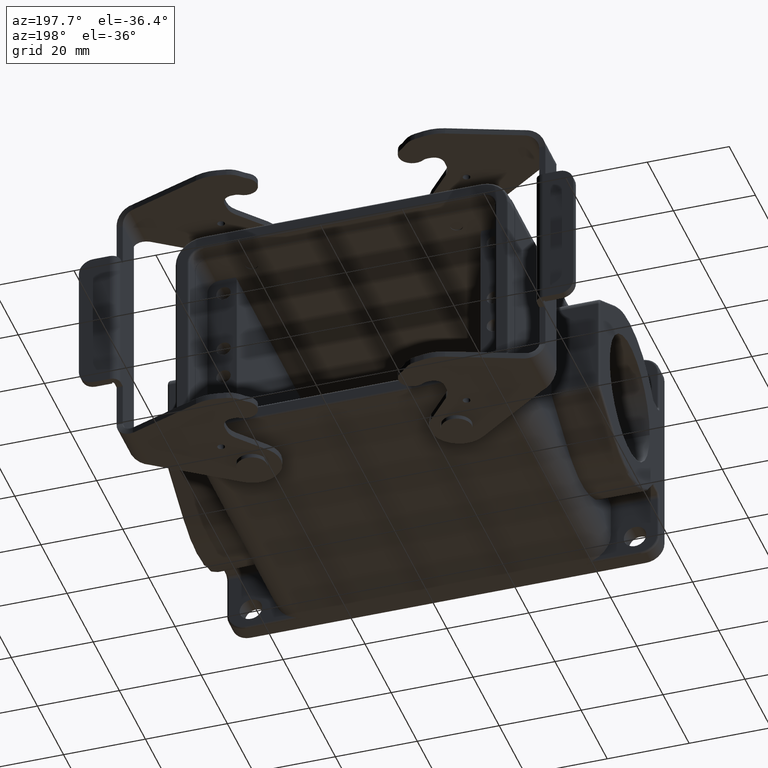
[diagram: clean part render]
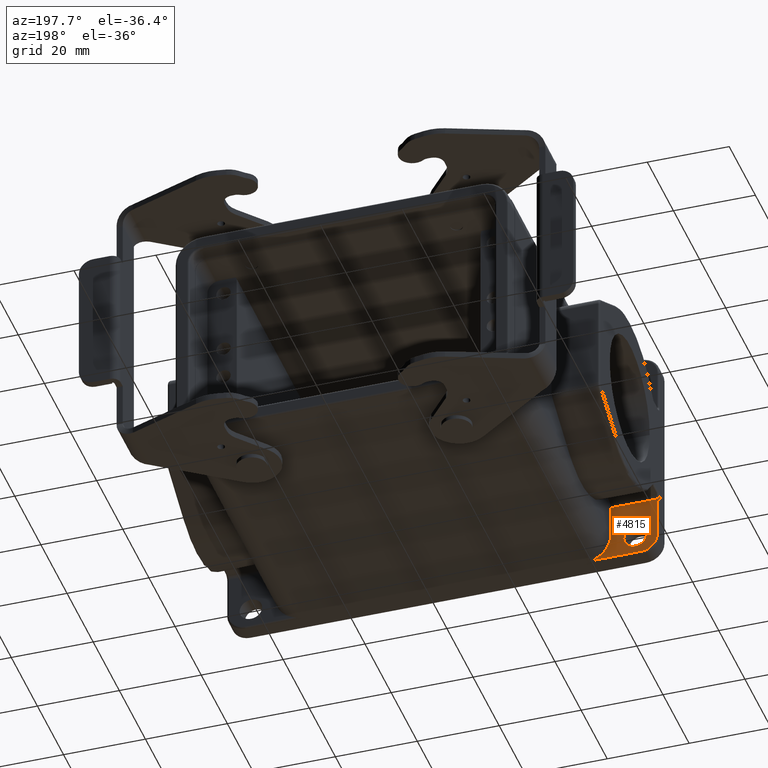
[diagram: same view with one face highlighted and labeled with its STEP entity id]
A machine part, auxiliary view. The second image highlights one B-rep face of the part: STEP entity #4815.
In plain terms, the highlighted planar face has unit normal (0, 1, 0).
Its self-contained STEP definition (entity closure, byte-faithful):
#1071=CARTESIAN_POINT('',(-3.659807621135E1,3.000000000001E0,-2.75E1));
#1073=DIRECTION('',(-1.E0,-1.074746909150E-13,-1.132431065290E-13));
#1074=VECTOR('',#1073,1.170192378865E1);
#1075=CARTESIAN_POINT('',(-3.659807621135E1,3.000000000001E0,-2.75E1));
#1076=LINE('',#1075,#1074);
#1355=DIRECTION('',(1.414153347269E-13,-2.426243487961E-14,1.E0));
#1356=VECTOR('',#1355,1.025E1);
#1357=CARTESIAN_POINT('',(-5.23E1,3.E0,-2.35E1));
#1358=LINE('',#1357,#1356);
#1363=CARTESIAN_POINT('',(-4.83E1,3.E0,-2.35E1));
#1364=DIRECTION('',(0.E0,-1.E0,0.E0));
#1365=DIRECTION('',(-1.E0,0.E0,0.E0));
#1366=AXIS2_PLACEMENT_3D('',#1363,#1364,#1365);
#1368=CARTESIAN_POINT('',(-3.4E1,3.000000000004E0,-2.1E1));
#1369=DIRECTION('',(0.E0,1.E0,0.E0));
#1370=DIRECTION('',(-3.711537444786E-1,0.E0,-9.285714285716E-1));
#1371=AXIS2_PLACEMENT_3D('',#1368,#1369,#1370);
#1373=DIRECTION('',(0.E0,-1.631956218883E-13,1.E0));
#1374=VECTOR('',#1373,7.750000000115E0);
#1375=CARTESIAN_POINT('',(-4.1E1,3.000000000001E0,-2.1E1));
#1376=LINE('',#1375,#1374);
#1377=CARTESIAN_POINT('',(-4.69E1,3.E0,-2.29E1));
#1378=DIRECTION('',(0.E0,1.E0,0.E0));
#1379=DIRECTION('',(-1.E0,0.E0,0.E0));
#1380=AXIS2_PLACEMENT_3D('',#1377,#1378,#1379);
#1382=CARTESIAN_POINT('',(-4.69E1,3.E0,-2.29E1));
#1383=DIRECTION('',(0.E0,1.E0,0.E0));
#1384=DIRECTION('',(1.E0,0.E0,0.E0));
#1385=AXIS2_PLACEMENT_3D('',#1382,#1383,#1384);
#1391=DIRECTION('',(-1.E0,-2.130056210077E-14,-1.042957264308E-11));
#1392=VECTOR('',#1391,1.13E1);
#1393=CARTESIAN_POINT('',(-4.1E1,3.E0,-1.324999999988E1));
#1394=LINE('',#1393,#1392);
#2862=CARTESIAN_POINT('',(-5.23E1,2.999999999999E0,-1.325E1));
#2864=VERTEX_POINT('',#2862);
#2865=CARTESIAN_POINT('',(-5.23E1,3.E0,-2.35E1));
#2867=VERTEX_POINT('',#2865);
#2870=CARTESIAN_POINT('',(-4.83E1,3.E0,-2.75E1));
#2872=VERTEX_POINT('',#2870);
#2874=VERTEX_POINT('',#1071);
#2876=CARTESIAN_POINT('',(-4.1E1,3.000000000001E0,-2.1E1));
#2878=VERTEX_POINT('',#2876);
#2887=CARTESIAN_POINT('',(-4.1E1,3.E0,-1.324999999976E1));
#2888=VERTEX_POINT('',#2887);
#2907=CARTESIAN_POINT('',(-4.965E1,3.E0,-2.29E1));
#2908=CARTESIAN_POINT('',(-4.415E1,3.E0,-2.29E1));
#2909=VERTEX_POINT('',#2907);
#2910=VERTEX_POINT('',#2908);
#4795=CARTESIAN_POINT('',(-4.444903810568E1,3.E0,-2.037499999994E1));
#4796=DIRECTION('',(0.E0,1.E0,0.E0));
#4797=DIRECTION('',(1.E0,0.E0,0.E0));
#4798=AXIS2_PLACEMENT_3D('',#4795,#4796,#4797);
#4799=PLANE('',#4798);
#4801=ORIENTED_EDGE('',*,*,#4800,.T.);
#4802=ORIENTED_EDGE('',*,*,#4787,.F.);
#4803=ORIENTED_EDGE('',*,*,#4309,.T.);
#4804=ORIENTED_EDGE('',*,*,#4324,.F.);
#4805=ORIENTED_EDGE('',*,*,#4338,.T.);
#4806=ORIENTED_EDGE('',*,*,#4363,.T.);
#4807=EDGE_LOOP('',(#4801,#4802,#4803,#4804,#4805,#4806));
#4808=FACE_OUTER_BOUND('',#4807,.F.);
#4810=ORIENTED_EDGE('',*,*,#4809,.T.);
#4812=ORIENTED_EDGE('',*,*,#4811,.T.);
#4813=EDGE_LOOP('',(#4810,#4812));
#4814=FACE_BOUND('',#4813,.F.);
#4815=ADVANCED_FACE('',(#4808,#4814),#4799,.T.);
#1367=CIRCLE('',#1366,4.000000000004E0);
#1372=CIRCLE('',#1371,7.E0);
#1381=CIRCLE('',#1380,2.75E0);
#1386=CIRCLE('',#1385,2.75E0);
#4309=EDGE_CURVE('',#2867,#2872,#1367,.T.);
#4324=EDGE_CURVE('',#2874,#2872,#1076,.T.);
#4338=EDGE_CURVE('',#2874,#2878,#1372,.T.);
#4363=EDGE_CURVE('',#2878,#2888,#1376,.T.);
#4787=EDGE_CURVE('',#2867,#2864,#1358,.T.);
#4800=EDGE_CURVE('',#2888,#2864,#1394,.T.);
#4809=EDGE_CURVE('',#2909,#2910,#1381,.T.);
#4811=EDGE_CURVE('',#2910,#2909,#1386,.T.);